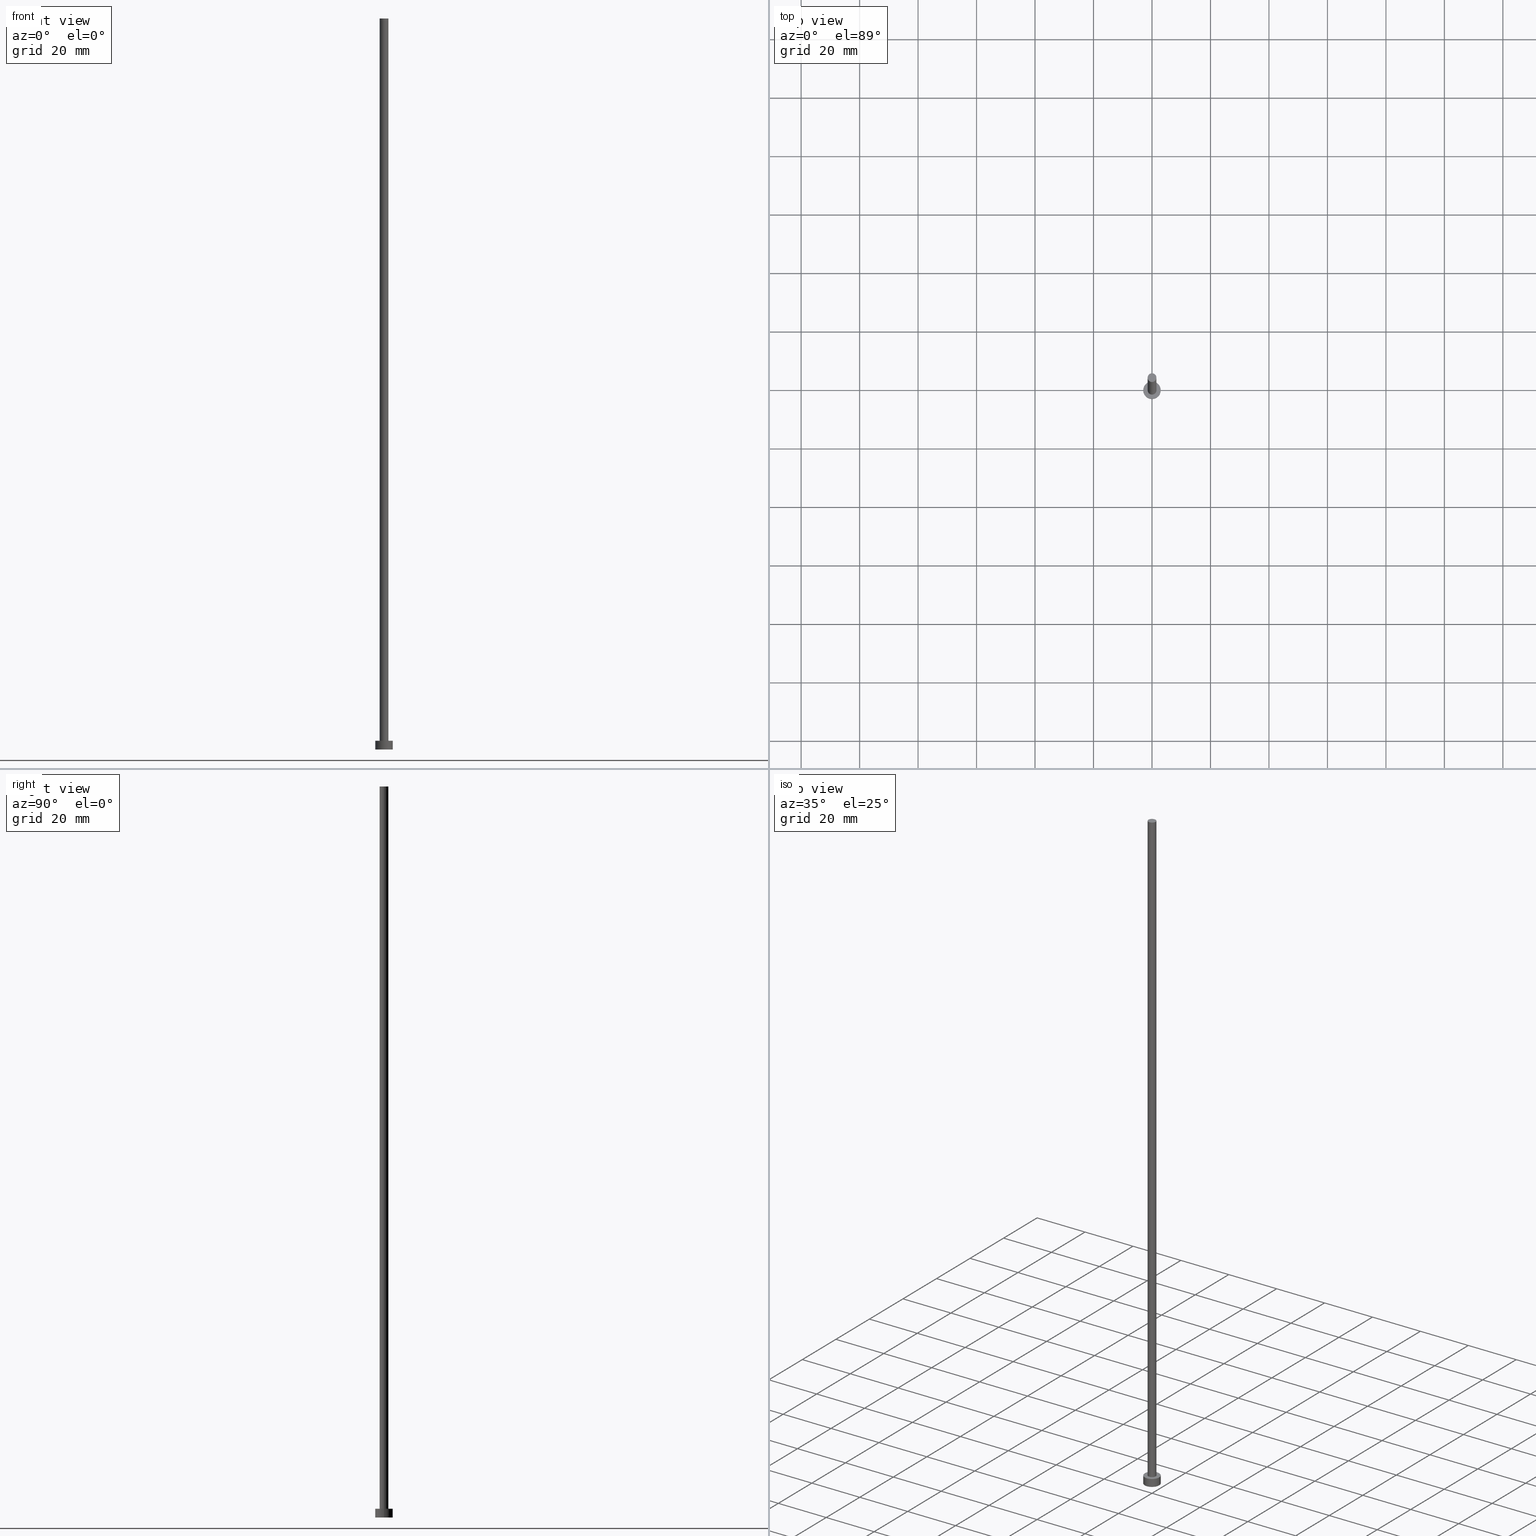
[diagram: canonical four-view strip — front | top / right | iso, engineering-drawing reading convention]
A machine part, canonical four-view strip (front | top / right | iso — engineering-drawing reading convention). The complete STEP part file that produces these views, byte-faithful:
ISO-10303-21;
HEADER;
FILE_DESCRIPTION (( 'STEP AP203' ),
    '1' );
FILE_NAME ('b2a0.STEP',
    '2023-02-12T12:13:20',
    ( '' ),
    ( '' ),
    'SwSTEP 2.0',
    'SolidWorks 2019',
    '' );
FILE_SCHEMA (( 'CONFIG_CONTROL_DESIGN' ));
ENDSEC;

DATA;
#1 = ORIENTED_EDGE ( 'NONE', *, *, #187, .F. ) ;
#2 = EDGE_LOOP ( 'NONE', ( #145, #43 ) ) ;
#3 = APPROVAL_STATUS ( 'not_yet_approved' ) ;
#4 = DIRECTION ( 'NONE',  ( 1.000000000000000000, 0.000000000000000000, 0.000000000000000000 ) ) ;
#5 = EDGE_LOOP ( 'NONE', ( #1, #240, #208, #100 ) ) ;
#6 = EDGE_CURVE ( 'NONE', #217, #23, #127, .T. ) ;
#7 = ORIENTED_EDGE ( 'NONE', *, *, #228, .F. ) ;
#8 = CALENDAR_DATE ( 2023, 12, 2 ) ;
#9 = DATE_AND_TIME ( #181, #250 ) ;
#10 = CYLINDRICAL_SURFACE ( 'NONE', #107, 1.500000000000000222 ) ;
#11 = CARTESIAN_POINT ( 'NONE',  ( 0.000000000000000000, 0.000000000000000000, 250.0000000000000000 ) ) ;
#12 = APPROVAL_DATE_TIME ( #183, #196 ) ;
#13 = FACE_OUTER_BOUND ( 'NONE', #182, .T. ) ;
#14 = CLOSED_SHELL ( 'NONE', ( #102, #79, #118, #126, #151, #82, #205 ) ) ;
#15 = DESIGN_CONTEXT ( 'detailed design', #72, 'design' ) ;
#16 = SECURITY_CLASSIFICATION ( '', '', #168 ) ;
#17 = PRODUCT_DEFINITION_SHAPE ( 'NONE', 'NONE',  #51 ) ;
#18 = APPROVAL_PERSON_ORGANIZATION ( #163, #39, #242 ) ;
#19 = ORIENTED_EDGE ( 'NONE', *, *, #218, .F. ) ;
#20 = EDGE_CURVE ( 'NONE', #147, #44, #59, .T. ) ;
#21 = COORDINATED_UNIVERSAL_TIME_OFFSET ( 1, 0, .AHEAD. ) ;
#22 = ORIENTED_EDGE ( 'NONE', *, *, #233, .T. ) ;
#23 = VERTEX_POINT ( 'NONE', #24 ) ;
#24 = CARTESIAN_POINT ( 'NONE',  ( -1.500000000000000222, 0.000000000000000000, 250.0000000000000000 ) ) ;
#25 = AXIS2_PLACEMENT_3D ( 'NONE', #11, #170, #245 ) ;
#26 = CARTESIAN_POINT ( 'NONE',  ( -3.000000000000000444, 0.000000000000000000, 3.000000000000000000 ) ) ;
#27 = DIRECTION ( 'NONE',  ( 0.000000000000000000, 0.000000000000000000, 1.000000000000000000 ) ) ;
#28 = DIRECTION ( 'NONE',  ( 0.000000000000000000, 0.000000000000000000, 1.000000000000000000 ) ) ;
#29 = DIRECTION ( 'NONE',  ( -0.000000000000000000, -0.000000000000000000, -1.000000000000000000 ) ) ;
#30 = DIRECTION ( 'NONE',  ( 1.000000000000000000, 0.000000000000000000, 0.000000000000000000 ) ) ;
#31 = DIRECTION ( 'NONE',  ( 0.000000000000000000, 0.000000000000000000, 1.000000000000000000 ) ) ;
#32 = AXIS2_PLACEMENT_3D ( 'NONE', #135, #52, #129 ) ;
#33 = CALENDAR_DATE ( 2023, 12, 2 ) ;
#34 = DIRECTION ( 'NONE',  ( 0.000000000000000000, 0.000000000000000000, 1.000000000000000000 ) ) ;
#35 = CC_DESIGN_APPROVAL ( #196, ( #120 ) ) ;
#36 = DIRECTION ( 'NONE',  ( -0.000000000000000000, -0.000000000000000000, -1.000000000000000000 ) ) ;
#37 = UNCERTAINTY_MEASURE_WITH_UNIT (LENGTH_MEASURE( 1.000000000000000082E-05 ), #98, 'distance_accuracy_value', 'NONE');
#38 = DIRECTION ( 'NONE',  ( -0.000000000000000000, -0.000000000000000000, -1.000000000000000000 ) ) ;
#39 = APPROVAL ( #69, 'NEUR�EN�' ) ;
#40 = ORIENTED_EDGE ( 'NONE', *, *, #132, .T. ) ;
#41 = APPROVAL ( #3, 'NEUR�EN�' ) ;
#42 = AXIS2_PLACEMENT_3D ( 'NONE', #251, #215, #75 ) ;
#43 = ORIENTED_EDGE ( 'NONE', *, *, #6, .T. ) ;
#44 = VERTEX_POINT ( 'NONE', #108 ) ;
#45 = APPROVAL_DATE_TIME ( #9, #39 ) ;
#46 = CIRCLE ( 'NONE', #194, 3.000000000000000444 ) ;
#47 = DIRECTION ( 'NONE',  ( 1.000000000000000000, 0.000000000000000000, 0.000000000000000000 ) ) ;
#48 = APPLICATION_CONTEXT ( 'configuration controlled 3d designs of mechanical parts and assemblies' ) ;
#49 = CARTESIAN_POINT ( 'NONE',  ( 3.000000000000000444, 3.673940397442060361E-16, 0.000000000000000000 ) ) ;
#50 = CARTESIAN_POINT ( 'NONE',  ( 1.500000000000000222, 1.836970198721030181E-16, 3.000000000000000000 ) ) ;
#51 = PRODUCT_DEFINITION ( 'NEZN�M�', '', #120, #15 ) ;
#52 = DIRECTION ( 'NONE',  ( 0.000000000000000000, 0.000000000000000000, 1.000000000000000000 ) ) ;
#53 = CYLINDRICAL_SURFACE ( 'NONE', #92, 1.500000000000000222 ) ;
#54 = CARTESIAN_POINT ( 'NONE',  ( -1.500000000000000222, 0.000000000000000000, 250.0000000000000000 ) ) ;
#55 = DIRECTION ( 'NONE',  ( -0.000000000000000000, -0.000000000000000000, -1.000000000000000000 ) ) ;
#56 = FACE_OUTER_BOUND ( 'NONE', #2, .T. ) ;
#57 = FACE_OUTER_BOUND ( 'NONE', #5, .T. ) ;
#58 = FACE_OUTER_BOUND ( 'NONE', #103, .T. ) ;
#59 = CIRCLE ( 'NONE', #220, 3.000000000000000444 ) ;
#60 = AXIS2_PLACEMENT_3D ( 'NONE', #248, #157, #154 ) ;
#61 = DATE_TIME_ROLE ( 'classification_date' ) ;
#62 = PERSON_AND_ORGANIZATION ( #189, #116 ) ;
#63 = DIRECTION ( 'NONE',  ( 0.000000000000000000, 0.000000000000000000, 1.000000000000000000 ) ) ;
#64 = VERTEX_POINT ( 'NONE', #164 ) ;
#65 = PERSON_AND_ORGANIZATION ( #189, #116 ) ;
#66 = CIRCLE ( 'NONE', #60, 3.000000000000000444 ) ;
#67 = LOCAL_TIME ( 13, 13, 20.00000000000000000, #21 ) ;
#68 = CC_DESIGN_PERSON_AND_ORGANIZATION_ASSIGNMENT ( #125, #73, ( #16 ) ) ;
#69 = APPROVAL_STATUS ( 'not_yet_approved' ) ;
#70 = FACE_OUTER_BOUND ( 'NONE', #83, .T. ) ;
#71 = CYLINDRICAL_SURFACE ( 'NONE', #158, 3.000000000000000444 ) ;
#72 = APPLICATION_CONTEXT ( 'configuration controlled 3d designs of mechanical parts and assemblies' ) ;
#73 = PERSON_AND_ORGANIZATION_ROLE ( 'classification_officer' ) ;
#74 = CARTESIAN_POINT ( 'NONE',  ( -3.000000000000000444, 0.000000000000000000, 3.000000000000000000 ) ) ;
#75 = DIRECTION ( 'NONE',  ( 1.000000000000000000, 0.000000000000000000, 0.000000000000000000 ) ) ;
#76 = VERTEX_POINT ( 'NONE', #49 ) ;
#77 = CC_DESIGN_APPROVAL ( #39, ( #51 ) ) ;
#78 = MECHANICAL_CONTEXT ( 'NONE', #48, 'mechanical' ) ;
#79 = ADVANCED_FACE ( 'NONE', ( #128 ), #206, .T. ) ;
#80 = ORIENTED_EDGE ( 'NONE', *, *, #159, .F. ) ;
#81 = DATE_AND_TIME ( #209, #255 ) ;
#82 = ADVANCED_FACE ( 'NONE', ( #70 ), #53, .T. ) ;
#83 = EDGE_LOOP ( 'NONE', ( #19, #105, #40, #142 ) ) ;
#84 = CC_DESIGN_PERSON_AND_ORGANIZATION_ASSIGNMENT ( #190, #111, ( #120 ) ) ;
#85 = LINE ( 'NONE', #156, #175 ) ;
#86 = DIRECTION ( 'NONE',  ( -0.000000000000000000, -0.000000000000000000, -1.000000000000000000 ) ) ;
#87 = DIRECTION ( 'NONE',  ( 1.000000000000000000, 0.000000000000000000, -0.000000000000000000 ) ) ;
#88 = LINE ( 'NONE', #54, #249 ) ;
#89 = ORIENTED_EDGE ( 'NONE', *, *, #132, .F. ) ;
#90 = CARTESIAN_POINT ( 'NONE',  ( 0.000000000000000000, 0.000000000000000000, 250.0000000000000000 ) ) ;
#91 = AXIS2_PLACEMENT_3D ( 'NONE', #188, #86, #165 ) ;
#92 = AXIS2_PLACEMENT_3D ( 'NONE', #149, #131, #112 ) ;
#93 = AXIS2_PLACEMENT_3D ( 'NONE', #121, #63, #4 ) ;
#94 = PLANE ( 'NONE',  #254 ) ;
#95 = ORIENTED_EDGE ( 'NONE', *, *, #172, .F. ) ;
#96 = AXIS2_PLACEMENT_3D ( 'NONE', #110, #34, #150 ) ;
#97 = CC_DESIGN_DATE_AND_TIME_ASSIGNMENT ( #81, #155, ( #51 ) ) ;
#98 =( LENGTH_UNIT ( ) NAMED_UNIT ( * ) SI_UNIT ( .MILLI., .METRE. ) );
#99 = CIRCLE ( 'NONE', #96, 1.500000000000000222 ) ;
#100 = ORIENTED_EDGE ( 'NONE', *, *, #146, .T. ) ;
#101 = APPROVAL_DATE_TIME ( #162, #41 ) ;
#102 = ADVANCED_FACE ( 'NONE', ( #153 ), #10, .T. ) ;
#103 = EDGE_LOOP ( 'NONE', ( #204, #22 ) ) ;
#104 = PERSON_AND_ORGANIZATION ( #189, #116 ) ;
#105 = ORIENTED_EDGE ( 'NONE', *, *, #141, .F. ) ;
#106 = COORDINATED_UNIVERSAL_TIME_OFFSET ( 1, 0, .AHEAD. ) ;
#107 = AXIS2_PLACEMENT_3D ( 'NONE', #227, #55, #133 ) ;
#108 = CARTESIAN_POINT ( 'NONE',  ( 3.000000000000000444, 3.673940397442060361E-16, 3.000000000000000000 ) ) ;
#109 = APPROVAL_PERSON_ORGANIZATION ( #161, #196, #115 ) ;
#110 = CARTESIAN_POINT ( 'NONE',  ( 0.000000000000000000, 0.000000000000000000, 3.000000000000000000 ) ) ;
#111 = PERSON_AND_ORGANIZATION_ROLE ( 'creator' ) ;
#112 = DIRECTION ( 'NONE',  ( -1.000000000000000000, 0.000000000000000000, 0.000000000000000000 ) ) ;
#113 = CARTESIAN_POINT ( 'NONE',  ( -3.000000000000000444, 0.000000000000000000, 0.000000000000000000 ) ) ;
#114 = AXIS2_PLACEMENT_3D ( 'NONE', #195, #224, #171 ) ;
#115 = APPROVAL_ROLE ( '' ) ;
#116 = ORGANIZATION ( 'NEUR�EN�', 'NEUR�EN�', '' ) ;
#117 = DIRECTION ( 'NONE',  ( -1.000000000000000000, 0.000000000000000000, 0.000000000000000000 ) ) ;
#118 = ADVANCED_FACE ( 'NONE', ( #57 ), #71, .T. ) ;
#119 = CC_DESIGN_APPROVAL ( #41, ( #16 ) ) ;
#120 = PRODUCT_DEFINITION_FORMATION_WITH_SPECIFIED_SOURCE ( 'LIBOVOLN�', '', #234, .NOT_KNOWN. ) ;
#121 = CARTESIAN_POINT ( 'NONE',  ( 0.000000000000000000, 0.000000000000000000, 0.000000000000000000 ) ) ;
#122 = VECTOR ( 'NONE', #38, 1000.000000000000000 ) ;
#123 = EDGE_LOOP ( 'NONE', ( #191, #80 ) ) ;
#124 = ORIENTED_EDGE ( 'NONE', *, *, #228, .T. ) ;
#125 = PERSON_AND_ORGANIZATION ( #189, #116 ) ;
#126 = ADVANCED_FACE ( 'NONE', ( #193, #58 ), #197, .T. ) ;
#127 = CIRCLE ( 'NONE', #136, 1.500000000000000222 ) ;
#128 = FACE_OUTER_BOUND ( 'NONE', #237, .T. ) ;
#129 = DIRECTION ( 'NONE',  ( 1.000000000000000000, 0.000000000000000000, -0.000000000000000000 ) ) ;
#130 = DATE_AND_TIME ( #8, #152 ) ;
#131 = DIRECTION ( 'NONE',  ( -0.000000000000000000, -0.000000000000000000, -1.000000000000000000 ) ) ;
#132 = EDGE_CURVE ( 'NONE', #23, #64, #88, .T. ) ;
#133 = DIRECTION ( 'NONE',  ( -1.000000000000000000, 0.000000000000000000, 0.000000000000000000 ) ) ;
#134 = DIRECTION ( 'NONE',  ( 0.000000000000000000, 0.000000000000000000, 1.000000000000000000 ) ) ;
#135 = CARTESIAN_POINT ( 'NONE',  ( 0.000000000000000000, 0.000000000000000000, 3.000000000000000000 ) ) ;
#136 = AXIS2_PLACEMENT_3D ( 'NONE', #223, #27, #30 ) ;
#137 =( NAMED_UNIT ( * ) SI_UNIT ( $, .STERADIAN. ) SOLID_ANGLE_UNIT ( ) );
#138 = CIRCLE ( 'NONE', #25, 1.500000000000000222 ) ;
#139 = VERTEX_POINT ( 'NONE', #113 ) ;
#140 = LOCAL_TIME ( 13, 13, 20.00000000000000000, #143 ) ;
#141 = EDGE_CURVE ( 'NONE', #23, #217, #138, .T. ) ;
#142 = ORIENTED_EDGE ( 'NONE', *, *, #216, .T. ) ;
#143 = COORDINATED_UNIVERSAL_TIME_OFFSET ( 1, 0, .AHEAD. ) ;
#144 = VECTOR ( 'NONE', #36, 1000.000000000000000 ) ;
#145 = ORIENTED_EDGE ( 'NONE', *, *, #141, .T. ) ;
#146 = EDGE_CURVE ( 'NONE', #139, #76, #46, .T. ) ;
#147 = VERTEX_POINT ( 'NONE', #26 ) ;
#148 = CARTESIAN_POINT ( 'NONE',  ( 0.000000000000000000, 0.000000000000000000, 3.000000000000000000 ) ) ;
#149 = CARTESIAN_POINT ( 'NONE',  ( 0.000000000000000000, 0.000000000000000000, 250.0000000000000000 ) ) ;
#150 = DIRECTION ( 'NONE',  ( 1.000000000000000000, 0.000000000000000000, 0.000000000000000000 ) ) ;
#151 = ADVANCED_FACE ( 'NONE', ( #13 ), #94, .F. ) ;
#152 = LOCAL_TIME ( 13, 13, 20.00000000000000000, #106 ) ;
#153 = FACE_OUTER_BOUND ( 'NONE', #200, .T. ) ;
#154 = DIRECTION ( 'NONE',  ( 1.000000000000000000, 0.000000000000000000, 0.000000000000000000 ) ) ;
#155 = DATE_TIME_ROLE ( 'creation_date' ) ;
#156 = CARTESIAN_POINT ( 'NONE',  ( 3.000000000000000444, 3.673940397442060361E-16, 3.000000000000000000 ) ) ;
#157 = DIRECTION ( 'NONE',  ( 0.000000000000000000, 0.000000000000000000, 1.000000000000000000 ) ) ;
#158 = AXIS2_PLACEMENT_3D ( 'NONE', #230, #225, #117 ) ;
#159 = EDGE_CURVE ( 'NONE', #203, #64, #221, .T. ) ;
#160 = ORIENTED_EDGE ( 'NONE', *, *, #159, .T. ) ;
#161 = PERSON_AND_ORGANIZATION ( #189, #116 ) ;
#162 = DATE_AND_TIME ( #238, #67 ) ;
#163 = PERSON_AND_ORGANIZATION ( #189, #116 ) ;
#164 = CARTESIAN_POINT ( 'NONE',  ( -1.500000000000000222, 0.000000000000000000, 3.000000000000000000 ) ) ;
#165 = DIRECTION ( 'NONE',  ( -1.000000000000000000, 0.000000000000000000, 0.000000000000000000 ) ) ;
#166 = PRODUCT_RELATED_PRODUCT_CATEGORY ( 'detail', '', ( #234 ) ) ;
#167 = PLANE ( 'NONE',  #212 ) ;
#168 = SECURITY_CLASSIFICATION_LEVEL ( 'unclassified' ) ;
#169 = CARTESIAN_POINT ( 'NONE',  ( 1.500000000000000222, 1.836970198721030181E-16, 250.0000000000000000 ) ) ;
#170 = DIRECTION ( 'NONE',  ( 0.000000000000000000, 0.000000000000000000, 1.000000000000000000 ) ) ;
#171 = DIRECTION ( 'NONE',  ( 1.000000000000000000, 0.000000000000000000, 0.000000000000000000 ) ) ;
#172 = EDGE_CURVE ( 'NONE', #147, #139, #247, .T. ) ;
#173 = DIRECTION ( 'NONE',  ( 1.000000000000000000, 0.000000000000000000, 0.000000000000000000 ) ) ;
#174 = APPLICATION_PROTOCOL_DEFINITION ( 'international standard', 'config_control_design', 1994, #48 ) ;
#175 = VECTOR ( 'NONE', #229, 1000.000000000000000 ) ;
#176 = APPROVAL_PERSON_ORGANIZATION ( #232, #41, #235 ) ;
#177 = ORIENTED_EDGE ( 'NONE', *, *, #146, .F. ) ;
#178 = SHAPE_DEFINITION_REPRESENTATION ( #17, #199 ) ;
#179 = PERSON_AND_ORGANIZATION_ROLE ( 'design_owner' ) ;
#180 = ORIENTED_EDGE ( 'NONE', *, *, #218, .T. ) ;
#181 = CALENDAR_DATE ( 2023, 12, 2 ) ;
#182 = EDGE_LOOP ( 'NONE', ( #177, #7 ) ) ;
#183 = DATE_AND_TIME ( #33, #140 ) ;
#184 = CC_DESIGN_PERSON_AND_ORGANIZATION_ASSIGNMENT ( #65, #219, ( #120 ) ) ;
#185 = APPLICATION_PROTOCOL_DEFINITION ( 'international standard', 'config_control_design', 1994, #72 ) ;
#186 = CARTESIAN_POINT ( 'NONE',  ( 0.000000000000000000, 0.000000000000000000, 0.000000000000000000 ) ) ;
#187 = EDGE_CURVE ( 'NONE', #44, #76, #85, .T. ) ;
#188 = CARTESIAN_POINT ( 'NONE',  ( 0.000000000000000000, 0.000000000000000000, 3.000000000000000000 ) ) ;
#189 = PERSON ( 'NEUR�EN�', 'NEUR�EN�', 'NEUR�EN�', ('NEUR�EN�'), ('NEUR�EN�'), ('NEUR�EN�') ) ;
#190 = PERSON_AND_ORGANIZATION ( #189, #116 ) ;
#191 = ORIENTED_EDGE ( 'NONE', *, *, #216, .F. ) ;
#192 = LINE ( 'NONE', #169, #122 ) ;
#193 = FACE_BOUND ( 'NONE', #123, .T. ) ;
#194 = AXIS2_PLACEMENT_3D ( 'NONE', #210, #31, #173 ) ;
#195 = CARTESIAN_POINT ( 'NONE',  ( 0.000000000000000000, 0.000000000000000000, 3.000000000000000000 ) ) ;
#196 = APPROVAL ( #239, 'NEUR�EN�' ) ;
#197 = PLANE ( 'NONE',  #32 ) ;
#198 = ORIENTED_EDGE ( 'NONE', *, *, #6, .F. ) ;
#199 = ADVANCED_BREP_SHAPE_REPRESENTATION ( 'b2a0', ( #253, #93 ), #241 ) ;
#200 = EDGE_LOOP ( 'NONE', ( #198, #180, #160, #89 ) ) ;
#201 = ORIENTED_EDGE ( 'NONE', *, *, #233, .F. ) ;
#202 = CC_DESIGN_PERSON_AND_ORGANIZATION_ASSIGNMENT ( #62, #179, ( #234 ) ) ;
#203 = VERTEX_POINT ( 'NONE', #50 ) ;
#204 = ORIENTED_EDGE ( 'NONE', *, *, #20, .T. ) ;
#205 = ADVANCED_FACE ( 'NONE', ( #56 ), #167, .T. ) ;
#206 = CYLINDRICAL_SURFACE ( 'NONE', #91, 3.000000000000000444 ) ;
#207 = CC_DESIGN_SECURITY_CLASSIFICATION ( #16, ( #120 ) ) ;
#208 = ORIENTED_EDGE ( 'NONE', *, *, #172, .T. ) ;
#209 = CALENDAR_DATE ( 2023, 12, 2 ) ;
#210 = CARTESIAN_POINT ( 'NONE',  ( 0.000000000000000000, 0.000000000000000000, 0.000000000000000000 ) ) ;
#211 = COORDINATED_UNIVERSAL_TIME_OFFSET ( 1, 0, .AHEAD. ) ;
#212 = AXIS2_PLACEMENT_3D ( 'NONE', #90, #134, #213 ) ;
#213 = DIRECTION ( 'NONE',  ( 1.000000000000000000, 0.000000000000000000, -0.000000000000000000 ) ) ;
#214 = CC_DESIGN_DATE_AND_TIME_ASSIGNMENT ( #130, #61, ( #16 ) ) ;
#215 = DIRECTION ( 'NONE',  ( 0.000000000000000000, 0.000000000000000000, 1.000000000000000000 ) ) ;
#216 = EDGE_CURVE ( 'NONE', #64, #203, #99, .T. ) ;
#217 = VERTEX_POINT ( 'NONE', #231 ) ;
#218 = EDGE_CURVE ( 'NONE', #217, #203, #192, .T. ) ;
#219 = PERSON_AND_ORGANIZATION_ROLE ( 'design_supplier' ) ;
#220 = AXIS2_PLACEMENT_3D ( 'NONE', #148, #222, #47 ) ;
#221 = CIRCLE ( 'NONE', #114, 1.500000000000000222 ) ;
#222 = DIRECTION ( 'NONE',  ( 0.000000000000000000, 0.000000000000000000, 1.000000000000000000 ) ) ;
#223 = CARTESIAN_POINT ( 'NONE',  ( 0.000000000000000000, 0.000000000000000000, 250.0000000000000000 ) ) ;
#224 = DIRECTION ( 'NONE',  ( 0.000000000000000000, 0.000000000000000000, 1.000000000000000000 ) ) ;
#225 = DIRECTION ( 'NONE',  ( -0.000000000000000000, -0.000000000000000000, -1.000000000000000000 ) ) ;
#226 = PERSON_AND_ORGANIZATION_ROLE ( 'creator' ) ;
#227 = CARTESIAN_POINT ( 'NONE',  ( 0.000000000000000000, 0.000000000000000000, 250.0000000000000000 ) ) ;
#228 = EDGE_CURVE ( 'NONE', #76, #139, #66, .T. ) ;
#229 = DIRECTION ( 'NONE',  ( -0.000000000000000000, -0.000000000000000000, -1.000000000000000000 ) ) ;
#230 = CARTESIAN_POINT ( 'NONE',  ( 0.000000000000000000, 0.000000000000000000, 3.000000000000000000 ) ) ;
#231 = CARTESIAN_POINT ( 'NONE',  ( 1.500000000000000222, 1.836970198721030181E-16, 250.0000000000000000 ) ) ;
#232 = PERSON_AND_ORGANIZATION ( #189, #116 ) ;
#233 = EDGE_CURVE ( 'NONE', #44, #147, #236, .T. ) ;
#234 = PRODUCT ( 'b2a0', 'b2a0', '', ( #78 ) ) ;
#235 = APPROVAL_ROLE ( '' ) ;
#236 = CIRCLE ( 'NONE', #42, 3.000000000000000444 ) ;
#237 = EDGE_LOOP ( 'NONE', ( #201, #243, #124, #95 ) ) ;
#238 = CALENDAR_DATE ( 2023, 12, 2 ) ;
#239 = APPROVAL_STATUS ( 'not_yet_approved' ) ;
#240 = ORIENTED_EDGE ( 'NONE', *, *, #20, .F. ) ;
#241 =( GEOMETRIC_REPRESENTATION_CONTEXT ( 3 ) GLOBAL_UNCERTAINTY_ASSIGNED_CONTEXT ( ( #37 ) ) GLOBAL_UNIT_ASSIGNED_CONTEXT ( ( #98, #252, #137 ) ) REPRESENTATION_CONTEXT ( 'NONE', 'WORKASPACE' ) );
#242 = APPROVAL_ROLE ( '' ) ;
#243 = ORIENTED_EDGE ( 'NONE', *, *, #187, .T. ) ;
#244 = CC_DESIGN_PERSON_AND_ORGANIZATION_ASSIGNMENT ( #104, #226, ( #51 ) ) ;
#245 = DIRECTION ( 'NONE',  ( 1.000000000000000000, 0.000000000000000000, 0.000000000000000000 ) ) ;
#246 = COORDINATED_UNIVERSAL_TIME_OFFSET ( 1, 0, .AHEAD. ) ;
#247 = LINE ( 'NONE', #74, #144 ) ;
#248 = CARTESIAN_POINT ( 'NONE',  ( 0.000000000000000000, 0.000000000000000000, 0.000000000000000000 ) ) ;
#249 = VECTOR ( 'NONE', #29, 1000.000000000000000 ) ;
#250 = LOCAL_TIME ( 13, 13, 20.00000000000000000, #246 ) ;
#251 = CARTESIAN_POINT ( 'NONE',  ( 0.000000000000000000, 0.000000000000000000, 3.000000000000000000 ) ) ;
#252 =( NAMED_UNIT ( * ) PLANE_ANGLE_UNIT ( ) SI_UNIT ( $, .RADIAN. ) );
#253 = MANIFOLD_SOLID_BREP ( 'P�idat vysunut�m3', #14 ) ;
#254 = AXIS2_PLACEMENT_3D ( 'NONE', #186, #28, #87 ) ;
#255 = LOCAL_TIME ( 13, 13, 20.00000000000000000, #211 ) ;
ENDSEC;
END-ISO-10303-21;
